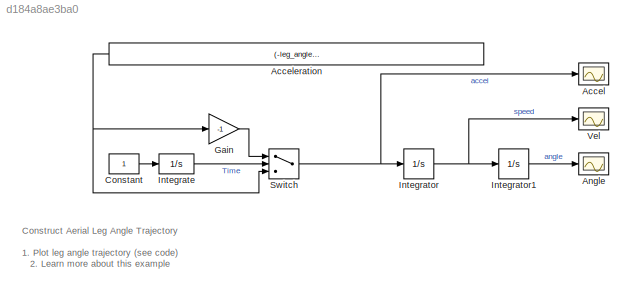
MODEL slx_d184a8ae3ba0
KIND model
CONFIG EnableMultiTasking = on
CONFIG InitFcn = if (~exist('T_cg') || ~exist('T_stance'))\n  sm_robot_run_4legs_param_def_load(bdroot)\nend
CONFIG MaxStep = 0.001
CONFIG SolverName = ode45
CONFIG StopTime = 2*T_cg-T_stance
BLOCK [Scope] Accel
  ActiveDisplayYMaximum = 814.73534
  ActiveDisplayYMinimum = -814.73534
  DataLoggingDecimateData = on
  DataLoggingDecimation = 1
  DataLoggingLimitDataPoints = on
  DataLoggingSaveFormat = Structure With Time
  DataLoggingVariableName = ScopeData2
  Floating = off
  GraphicalSettings = {"GraphicalSettings":{"LegacySettings":true,"Style":{"AxesScalingProperties":{"ScaleAxesLimitsAtStop":false},"Style":{"AxesColor":"[0 0 0]","ChannelNames":[""],"ColorOrder":"[1 1 0.0666666666666667;0.0745098039215686 0.623529411764706 1;1 0.411764705882353 0.16078431372549;0.392156862745098 0.831372549019608 0.0745098039215686;0.717647058823529 0.274509803921569 1;0.0588235294117647 1 1;1 0.074509...<+399ch>  <repeated x3 — deduplicated; at blocks: Accel, Angle, Vel>
  MultipleDisplayCache = [{"MaxYLimMag":814.73534,"MaxYLimReal":814.73534,"MinYLimMag":0,"MinYLimReal":-814.73534,"PlotAsMagnitudePhase":false,"ShowGrid":true,"ShowLegend":false,"Title":"%<SignalLabel>","YLabel":""}]
  NumInputPorts = 1
  WasSavedAsWebScope = on
BLOCK [Constant] Acceleration
  Value = (-leg_angle0-(T_cg-T_stance/2)*leg_vel0)/(0.5*(T_cg-T_stance/2)^2)
BLOCK [Scope] Angle
  ActiveDisplayYMaximum = 60
  ActiveDisplayYMinimum = -60
  DataLogging = on
  DataLoggingDecimateData = on
  DataLoggingDecimation = 1
  DataLoggingSaveFormat = Structure With Time
  DataLoggingVariableName = aerial_phase_angle
  Floating = off
  MultipleDisplayCache = [{"MaxYLimMag":10,"MaxYLimReal":60,"MinYLimMag":0,"MinYLimReal":-60,"PlotAsMagnitudePhase":false,"ShowGrid":true,"ShowLegend":false,"Title":"%<SignalLabel>","YLabel":""}]
  NumInputPorts = 1
  WasSavedAsWebScope = on
BLOCK [Constant] Constant
BLOCK [Gain] Gain
  Gain = -1
BLOCK [Integrator] Integrate
BLOCK [Integrator] Integrator
  AttributesFormatString = %<InitialCondition>
  InitialCondition = leg_vel0
BLOCK [Integrator] Integrator1
  AttributesFormatString = %<InitialCondition>
  InitialCondition = leg_angle0
BLOCK [Switch] Switch
  AttributesFormatString = Threshold = %<Threshold>
  InputSameDT = off
  SaturateOnIntegerOverflow = off
  Threshold = (2*T_cg-T_stance)/2
BLOCK [Scope] Vel
  ActiveDisplayYMaximum = 200
  ActiveDisplayYMinimum = -150
  DataLoggingDecimateData = on
  DataLoggingDecimation = 1
  DataLoggingLimitDataPoints = on
  DataLoggingSaveFormat = Structure With Time
  DataLoggingVariableName = ScopeData1
  Floating = off
  MultipleDisplayCache = [{"MaxYLimMag":10,"MaxYLimReal":200,"MinYLimMag":0,"MinYLimReal":-150,"PlotAsMagnitudePhase":false,"ShowGrid":true,"ShowLegend":false,"Title":"%<SignalLabel>","YLabel":""}]
  NumInputPorts = 1
  WasSavedAsWebScope = on
ANNOTATION (root): 1. Plot leg angle trajectory ( see code ) 2. Learn more about this example
ANNOTATION (root): Construct Aerial Leg Angle Trajectory
NET Acceleration:1 -> Gain:1, Switch:3
LINE Constant:1 -> Integrate:1
LINE Gain:1 -> Switch:1
LINE Integrate:1 -> Switch:2
LINE Integrator1:1 -> Angle:1
NET Integrator:1 -> Integrator1:1, Vel:1
NET Switch:1 -> Accel:1, Integrator:1
note: NET lines group one-source signal fan-out (src -> all destinations, sorted); 1:1 wires keep LINE
